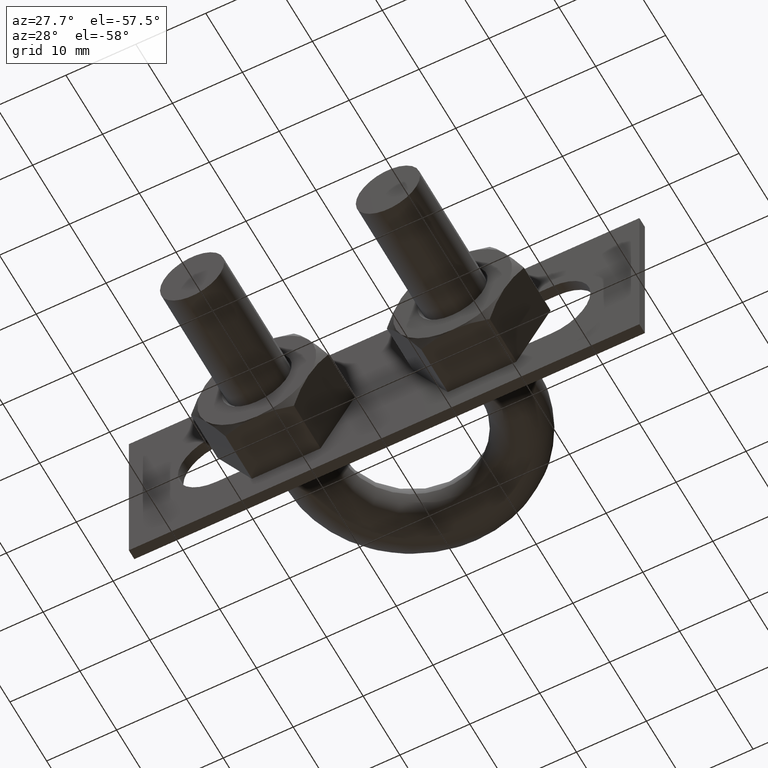
[diagram: clean part render]
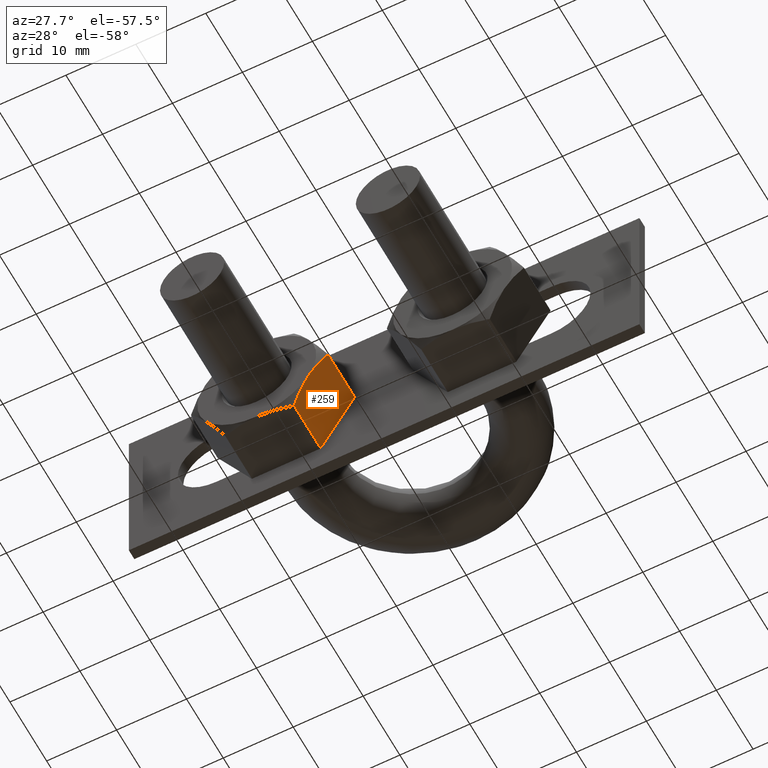
[diagram: same view with one face highlighted and labeled with its STEP entity id]
A machine part, auxiliary view. The second image highlights one B-rep face of the part: STEP entity #259.
In plain terms, the highlighted planar face has unit normal (-0.866, 0, 0.5).
Its self-contained STEP definition (entity closure, byte-faithful):
#259 = ADVANCED_FACE( '', ( #382 ), #383, .F. );
#382 = FACE_OUTER_BOUND( '', #702, .T. );
#383 = PLANE( '', #703 );
#702 = EDGE_LOOP( '', ( #1074, #1075, #1076, #1077, #1078 ) );
#703 = AXIS2_PLACEMENT_3D( '', #1079, #1080, #1081 );
#1074 = ORIENTED_EDGE( '', *, *, #1366, .F. );
#1075 = ORIENTED_EDGE( '', *, *, #1399, .F. );
#1076 = ORIENTED_EDGE( '', *, *, #1400, .F. );
#1077 = ORIENTED_EDGE( '', *, *, #1373, .F. );
#1078 = ORIENTED_EDGE( '', *, *, #1393, .F. );
#1079 = CARTESIAN_POINT( '', ( -4.18504542377636, -2.38000000000001, 3.67977546610776E-032 ) );
#1080 = DIRECTION( '', ( -0.866025403784439, 5.30270106023007E-017, 0.500000000000000 ) );
#1081 = DIRECTION( '', ( 0.500000000000000, -3.06151588455594E-017, 0.866025403784439 ) );
#1366 = EDGE_CURVE( '', #1561, #1574, #1575, .T. );
#1373 = EDGE_CURVE( '', #1585, #1587, #1588, .T. );
#1393 = EDGE_CURVE( '', #1574, #1585, #1618, .T. );
#1399 = EDGE_CURVE( '', #1626, #1561, #1627, .T. );
#1400 = EDGE_CURVE( '', #1587, #1626, #1628, .F. );
#1561 = VERTEX_POINT( '', #1887 );
#1574 = VERTEX_POINT( '', #1908 );
#1575 = B_SPLINE_CURVE_WITH_KNOTS( '', 3, ( #1909, #1910, #1911, #1912, #1913, #1914, #1915, #1916 ), .UNSPECIFIED., .F., .F., ( 4, 2, 2, 4 ), ( 0.00493529902949373, 0.00616408349151779, 0.00739286795354186, 0.00985043687758998 ), .UNSPECIFIED. );
#1585 = VERTEX_POINT( '', #1927 );
#1587 = VERTEX_POINT( '', #1929 );
#1588 = LINE( '', #1930, #1931 );
#1618 = LINE( '', #1999, #2000 );
#1626 = VERTEX_POINT( '', #2020 );
#1627 = B_SPLINE_CURVE_WITH_KNOTS( '', 3, ( #2021, #2022, #2023, #2024, #2025, #2026 ), .UNSPECIFIED., .F., .F., ( 4, 2, 4 ), ( 7.17194508351968E-007, 0.00246800811200104, 0.00493529902949373 ), .UNSPECIFIED. );
#1628 = LINE( '', #2027, #2028 );
#1887 = CARTESIAN_POINT( '', ( -6.63878406783227, -10.3800000000000, -4.25000000000000 ) );
#1908 = CARTESIAN_POINT( '', ( -4.20003438818083, -9.62944465005349, -0.0259616479013788 ) );
#1909 = CARTESIAN_POINT( '', ( -6.63878406783227, -10.3800000000000, -4.25000000000000 ) );
#1910 = CARTESIAN_POINT( '', ( -6.43192925395681, -10.3800000000000, -3.89171695257749 ) );
#1911 = CARTESIAN_POINT( '', ( -6.22404065703103, -10.3622887858780, -3.53164334038783 ) );
#1912 = CARTESIAN_POINT( '', ( -5.81278456700350, -10.2936979023202, -2.81932689753803 ) );
#1913 = CARTESIAN_POINT( '', ( -5.60852350883387, -10.2428885136661, -2.46553636678045 ) );
#1914 = CARTESIAN_POINT( '', ( -4.99935022544190, -10.0468508935345, -1.41041728933201 ) );
#1915 = CARTESIAN_POINT( '', ( -4.59803450222864, -9.85817495561507, -0.715318066850383 ) );
#1916 = CARTESIAN_POINT( '', ( -4.20003438818083, -9.62944465005349, -0.0259616479013783 ) );
#1927 = CARTESIAN_POINT( '', ( -4.20003438818083, -2.38000000000001, -0.0259616479013813 ) );
#1929 = CARTESIAN_POINT( '', ( -9.07753374748371, -2.38000000000001, -8.47403835209862 ) );
#1930 = CARTESIAN_POINT( '', ( -9.08878406783227, -2.38000000000001, -8.49352447854375 ) );
#1931 = VECTOR( '', #2341, 1000.00000000000 );
#1999 = CARTESIAN_POINT( '', ( -4.20003438818083, -2.38000000000001, -0.0259616479013807 ) );
#2000 = VECTOR( '', #2366, 1000.00000000000 );
#2020 = CARTESIAN_POINT( '', ( -9.07753374748371, -9.62944465005349, -8.47403835209862 ) );
#2021 = CARTESIAN_POINT( '', ( -9.07753374748371, -9.62944465005349, -8.47403835209862 ) );
#2022 = CARTESIAN_POINT( '', ( -8.67848198071166, -9.85877933948449, -7.78286041719930 ) );
#2023 = CARTESIAN_POINT( '', ( -8.27654788751889, -10.0475470520196, -7.08669014649529 ) );
#2024 = CARTESIAN_POINT( '', ( -7.46440242615032, -10.3085849074241, -5.68001294426847 ) );
#2025 = CARTESIAN_POINT( '', ( -7.05413030575092, -10.3800000000000, -4.96940078680768 ) );
#2026 = CARTESIAN_POINT( '', ( -6.63878406783227, -10.3800000000000, -4.25000000000000 ) );
#2027 = CARTESIAN_POINT( '', ( -9.07753374748371, -2.38000000000001, -8.47403835209862 ) );
#2028 = VECTOR( '', #2372, 1000.00000000000 );
#2341 = DIRECTION( '', ( -0.500000000000000, 3.06151588455594E-017, -0.866025403784439 ) );
#2366 = DIRECTION( '', ( 6.12303176911189E-017, 1.00000000000000, -4.95179021115217E-066 ) );
#2372 = DIRECTION( '', ( 6.12303176911189E-017, 1.00000000000000, -4.95179021115217E-066 ) );